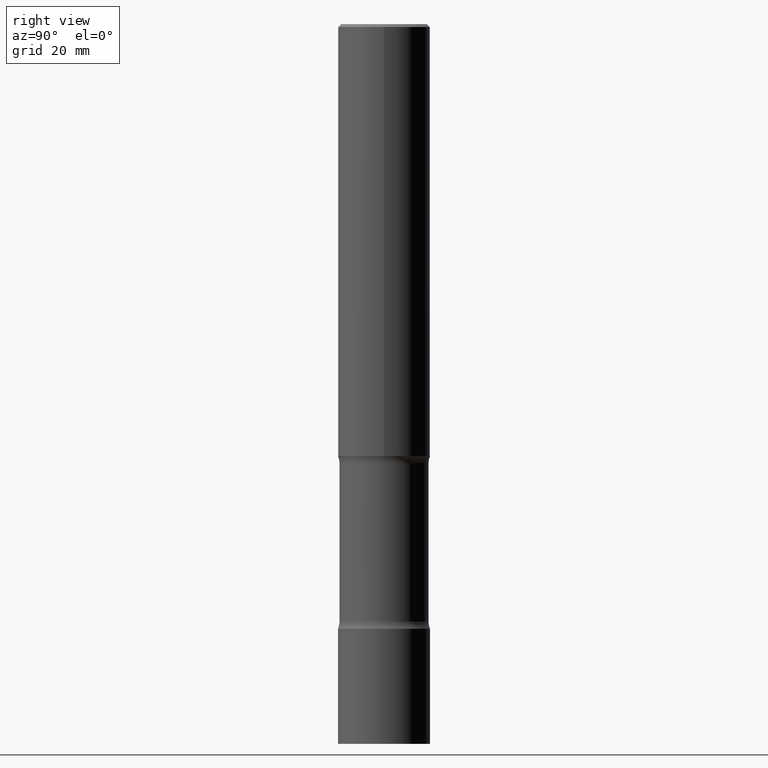
[diagram: clean part render]
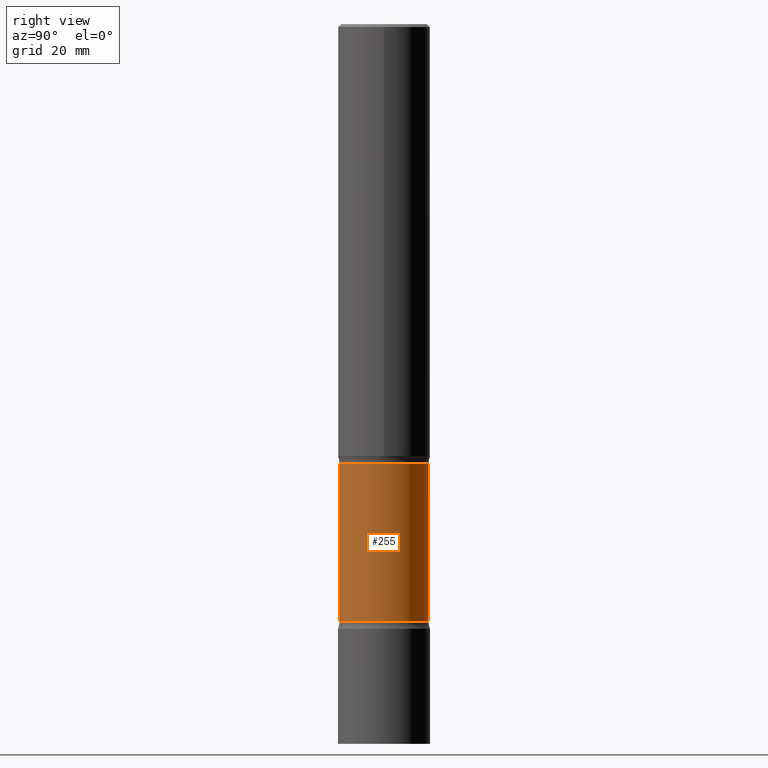
[diagram: same view with one face highlighted and labeled with its STEP entity id]
A machine part, right view. The second image highlights one B-rep face of the part: STEP entity #255.
In plain terms, the highlighted cylindrical surface (partial cylindrical patch) has radius 7.7356 mm, axis along (0, -0, -1).
Its self-contained STEP definition (entity closure, byte-faithful):
#13 = EDGE_CURVE ( 'NONE', #127, #64, #500, .T. ) ;
#14 = DIRECTION ( 'NONE',  ( 2.554481209903822320E-29, -3.335369372117288584E-15, -1.000000000000000000 ) ) ;
#38 = EDGE_CURVE ( 'NONE', #64, #361, #366, .T. ) ;
#64 = VERTEX_POINT ( 'NONE', #72 ) ;
#68 = ORIENTED_EDGE ( 'NONE', *, *, #267, .T. ) ;
#72 = CARTESIAN_POINT ( 'NONE',  ( 2.126661283489454719E-15, 0.3045499999999861096, -4.083981666694490364 ) ) ;
#107 = DIRECTION ( 'NONE',  ( 2.554481209903822320E-29, -3.335369372117288584E-15, -1.000000000000000000 ) ) ;
#127 = VERTEX_POINT ( 'NONE', #164 ) ;
#149 = DIRECTION ( 'NONE',  ( 6.982962677686265922E-15, 1.000000000000000000, -3.588045304435082954E-15 ) ) ;
#164 = CARTESIAN_POINT ( 'NONE',  ( 2.126661283489426320E-15, 0.3045499999999895513, -3.002718333305510523 ) ) ;
#167 = VERTEX_POINT ( 'NONE', #347 ) ;
#175 = DIRECTION ( 'NONE',  ( 6.982962677686264344E-15, 1.000000000000000000, -3.588045304435081376E-15 ) ) ;
#183 = ORIENTED_EDGE ( 'NONE', *, *, #38, .F. ) ;
#192 = VECTOR ( 'NONE', #486, 39.37007874015748143 ) ;
#197 = EDGE_LOOP ( 'NONE', ( #449, #68, #183, #355 ) ) ;
#246 = LINE ( 'NONE', #401, #192 ) ;
#255 = ADVANCED_FACE ( 'NONE', ( #404 ), #435, .T. ) ;
#267 = EDGE_CURVE ( 'NONE', #167, #361, #246, .T. ) ;
#289 = CIRCLE ( 'NONE', #480, 0.3045500000000002094 ) ;
#296 = AXIS2_PLACEMENT_3D ( 'NONE', #395, #14, #175 ) ;
#300 = CARTESIAN_POINT ( 'NONE',  ( 2.126661283489475624E-15, 0.3045499999999832785, -4.921299999999999564 ) ) ;
#337 = CARTESIAN_POINT ( 'NONE',  ( 7.223586169507781532E-29, -1.065501978506475776E-14, -3.002718333305509191 ) ) ;
#347 = CARTESIAN_POINT ( 'NONE',  ( -2.125039254809661718E-15, -0.3045500000000108676, -3.002718333305508303 ) ) ;
#355 = ORIENTED_EDGE ( 'NONE', *, *, #13, .F. ) ;
#361 = VERTEX_POINT ( 'NONE', #440 ) ;
#366 = CIRCLE ( 'NONE', #471, 0.3045500000000003760 ) ;
#395 = CARTESIAN_POINT ( 'NONE',  ( 1.212456698674481103E-28, -1.705419831406329672E-14, -4.921299999999998676 ) ) ;
#401 = CARTESIAN_POINT ( 'NONE',  ( -2.089364665221200584E-15, -0.3045500000000173624, -4.921299999999997787 ) ) ;
#404 = FACE_OUTER_BOUND ( 'NONE', #197, .T. ) ;
#409 = VECTOR ( 'NONE', #460, 39.37007874015748143 ) ;
#417 = CARTESIAN_POINT ( 'NONE',  ( 9.985653037607901887E-29, -1.426143239044380354E-14, -4.083981666694489476 ) ) ;
#420 = DIRECTION ( 'NONE',  ( 6.982962677686265922E-15, 1.000000000000000000, -3.588045304435081376E-15 ) ) ;
#431 = DIRECTION ( 'NONE',  ( 2.554481209903822320E-29, -3.335369372117288584E-15, -1.000000000000000000 ) ) ;
#435 = CYLINDRICAL_SURFACE ( 'NONE', #296, 0.3045500000000003205 ) ;
#440 = CARTESIAN_POINT ( 'NONE',  ( -2.125039254809633319E-15, -0.3045500000000146423, -4.083981666694487700 ) ) ;
#449 = ORIENTED_EDGE ( 'NONE', *, *, #468, .T. ) ;
#460 = DIRECTION ( 'NONE',  ( 2.554481209903822320E-29, -3.335369372117288979E-15, -1.000000000000000000 ) ) ;
#468 = EDGE_CURVE ( 'NONE', #127, #167, #289, .T. ) ;
#471 = AXIS2_PLACEMENT_3D ( 'NONE', #417, #431, #420 ) ;
#480 = AXIS2_PLACEMENT_3D ( 'NONE', #337, #107, #149 ) ;
#486 = DIRECTION ( 'NONE',  ( 2.554481209903822320E-29, -3.335369372117288979E-15, -1.000000000000000000 ) ) ;
#500 = LINE ( 'NONE', #300, #409 ) ;